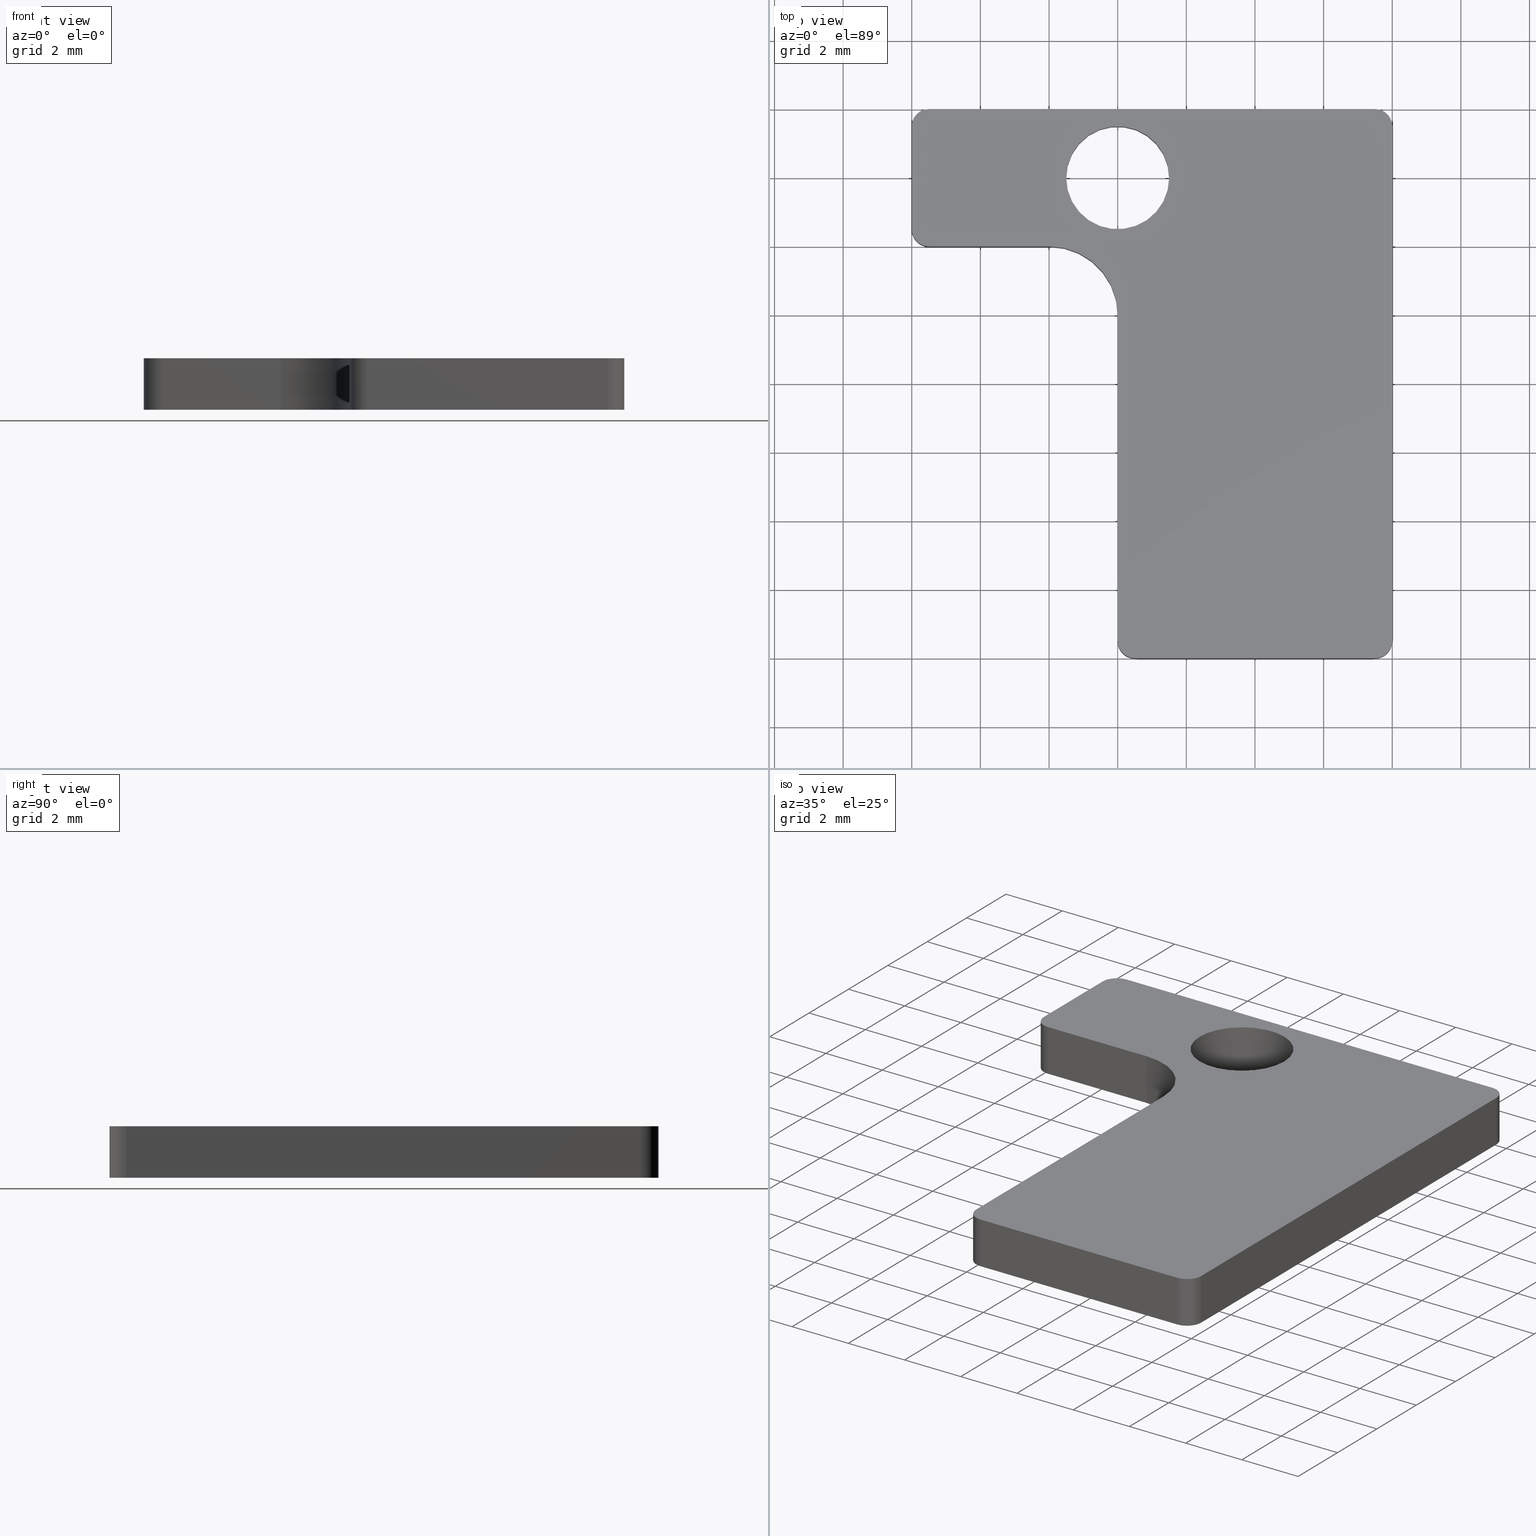
[diagram: canonical four-view strip — front | top / right | iso, engineering-drawing reading convention]
A machine part, canonical four-view strip (front | top / right | iso — engineering-drawing reading convention). The complete STEP part file that produces these views, byte-faithful:
ISO-10303-21;
HEADER;
FILE_DESCRIPTION(('FreeCAD Model'),'2;1');
FILE_NAME(
'/home/aleph/yellowfin/production_parts/machined_parts/some_struder_
retention_plate.step','2017-07-21T13:21:46',('Author'),(''),
  'Open CASCADE STEP processor 6.9','FreeCAD','Unknown');
FILE_SCHEMA(('AUTOMOTIVE_DESIGN_CC2 { 1 2 10303 214 -1 1 5 4 }'));
ENDSEC;
DATA;
#1 = APPLICATION_PROTOCOL_DEFINITION('committee draft',
  'automotive_design',1997,#2);
#2 = APPLICATION_CONTEXT(
  'core data for automotive mechanical design processes');
#3 = SHAPE_DEFINITION_REPRESENTATION(#4,#10);
#4 = PRODUCT_DEFINITION_SHAPE('','',#5);
#5 = PRODUCT_DEFINITION('design','',#6,#9);
#6 = PRODUCT_DEFINITION_FORMATION('','',#7);
#7 = PRODUCT('Fillet001','Fillet001','',(#8));
#8 = MECHANICAL_CONTEXT('',#2,'mechanical');
#9 = PRODUCT_DEFINITION_CONTEXT('part definition',#2,'design');
#10 = ADVANCED_BREP_SHAPE_REPRESENTATION('',(#11,#15),#1097);
#11 = AXIS2_PLACEMENT_3D('',#12,#13,#14);
#12 = CARTESIAN_POINT('',(0.,0.,0.));
#13 = DIRECTION('',(0.,0.,1.));
#14 = DIRECTION('',(1.,0.,-0.));
#15 = MANIFOLD_SOLID_BREP('',#16);
#16 = CLOSED_SHELL('',(#17,#137,#490,#544,#598,#847,#874,#901,#928,#955,
    #982,#1009,#1036,#1063,#1070));
#17 = ADVANCED_FACE('',(#18),#32,.T.);
#18 = FACE_BOUND('',#19,.T.);
#19 = EDGE_LOOP('',(#20,#55,#83,#111));
#20 = ORIENTED_EDGE('',*,*,#21,.F.);
#21 = EDGE_CURVE('',#22,#24,#26,.T.);
#22 = VERTEX_POINT('',#23);
#23 = CARTESIAN_POINT('',(-2.,12.,0.));
#24 = VERTEX_POINT('',#25);
#25 = CARTESIAN_POINT('',(-5.5,12.,0.));
#26 = SURFACE_CURVE('',#27,(#31,#43),.PCURVE_S1.);
#27 = LINE('',#28,#29);
#28 = CARTESIAN_POINT('',(0.,12.,0.));
#29 = VECTOR('',#30,1.);
#30 = DIRECTION('',(-1.,0.,0.));
#31 = PCURVE('',#32,#37);
#32 = PLANE('',#33);
#33 = AXIS2_PLACEMENT_3D('',#34,#35,#36);
#34 = CARTESIAN_POINT('',(0.,12.,0.));
#35 = DIRECTION('',(0.,-1.,0.));
#36 = DIRECTION('',(-1.,0.,0.));
#37 = DEFINITIONAL_REPRESENTATION('',(#38),#42);
#38 = LINE('',#39,#40);
#39 = CARTESIAN_POINT('',(0.,-0.));
#40 = VECTOR('',#41,1.);
#41 = DIRECTION('',(1.,0.));
#42 = ( GEOMETRIC_REPRESENTATION_CONTEXT(2) 
PARAMETRIC_REPRESENTATION_CONTEXT() REPRESENTATION_CONTEXT('2D SPACE',''
  ) );
#43 = PCURVE('',#44,#49);
#44 = PLANE('',#45);
#45 = AXIS2_PLACEMENT_3D('',#46,#47,#48);
#46 = CARTESIAN_POINT('',(2.2,9.2,0.));
#47 = DIRECTION('',(0.,0.,1.));
#48 = DIRECTION('',(1.,0.,0.));
#49 = DEFINITIONAL_REPRESENTATION('',(#50),#54);
#50 = LINE('',#51,#52);
#51 = CARTESIAN_POINT('',(-2.2,2.8));
#52 = VECTOR('',#53,1.);
#53 = DIRECTION('',(-1.,0.));
#54 = ( GEOMETRIC_REPRESENTATION_CONTEXT(2) 
PARAMETRIC_REPRESENTATION_CONTEXT() REPRESENTATION_CONTEXT('2D SPACE',''
  ) );
#55 = ORIENTED_EDGE('',*,*,#56,.T.);
#56 = EDGE_CURVE('',#22,#57,#59,.T.);
#57 = VERTEX_POINT('',#58);
#58 = CARTESIAN_POINT('',(-2.,12.,1.5));
#59 = SURFACE_CURVE('',#60,(#64,#71),.PCURVE_S1.);
#60 = LINE('',#61,#62);
#61 = CARTESIAN_POINT('',(-2.,12.,0.));
#62 = VECTOR('',#63,1.);
#63 = DIRECTION('',(0.,0.,1.));
#64 = PCURVE('',#32,#65);
#65 = DEFINITIONAL_REPRESENTATION('',(#66),#70);
#66 = LINE('',#67,#68);
#67 = CARTESIAN_POINT('',(2.,0.));
#68 = VECTOR('',#69,1.);
#69 = DIRECTION('',(0.,-1.));
#70 = ( GEOMETRIC_REPRESENTATION_CONTEXT(2) 
PARAMETRIC_REPRESENTATION_CONTEXT() REPRESENTATION_CONTEXT('2D SPACE',''
  ) );
#71 = PCURVE('',#72,#77);
#72 = CYLINDRICAL_SURFACE('',#73,2.);
#73 = AXIS2_PLACEMENT_3D('',#74,#75,#76);
#74 = CARTESIAN_POINT('',(-2.,10.,0.));
#75 = DIRECTION('',(0.,0.,1.));
#76 = DIRECTION('',(0.,1.,0.));
#77 = DEFINITIONAL_REPRESENTATION('',(#78),#82);
#78 = LINE('',#79,#80);
#79 = CARTESIAN_POINT('',(-0.,0.));
#80 = VECTOR('',#81,1.);
#81 = DIRECTION('',(-0.,1.));
#82 = ( GEOMETRIC_REPRESENTATION_CONTEXT(2) 
PARAMETRIC_REPRESENTATION_CONTEXT() REPRESENTATION_CONTEXT('2D SPACE',''
  ) );
#83 = ORIENTED_EDGE('',*,*,#84,.T.);
#84 = EDGE_CURVE('',#57,#85,#87,.T.);
#85 = VERTEX_POINT('',#86);
#86 = CARTESIAN_POINT('',(-5.5,12.,1.5));
#87 = SURFACE_CURVE('',#88,(#92,#99),.PCURVE_S1.);
#88 = LINE('',#89,#90);
#89 = CARTESIAN_POINT('',(0.,12.,1.5));
#90 = VECTOR('',#91,1.);
#91 = DIRECTION('',(-1.,0.,0.));
#92 = PCURVE('',#32,#93);
#93 = DEFINITIONAL_REPRESENTATION('',(#94),#98);
#94 = LINE('',#95,#96);
#95 = CARTESIAN_POINT('',(0.,-1.5));
#96 = VECTOR('',#97,1.);
#97 = DIRECTION('',(1.,0.));
#98 = ( GEOMETRIC_REPRESENTATION_CONTEXT(2) 
PARAMETRIC_REPRESENTATION_CONTEXT() REPRESENTATION_CONTEXT('2D SPACE',''
  ) );
#99 = PCURVE('',#100,#105);
#100 = PLANE('',#101);
#101 = AXIS2_PLACEMENT_3D('',#102,#103,#104);
#102 = CARTESIAN_POINT('',(2.2,9.2,1.5));
#103 = DIRECTION('',(0.,0.,1.));
#104 = DIRECTION('',(1.,0.,0.));
#105 = DEFINITIONAL_REPRESENTATION('',(#106),#110);
#106 = LINE('',#107,#108);
#107 = CARTESIAN_POINT('',(-2.2,2.8));
#108 = VECTOR('',#109,1.);
#109 = DIRECTION('',(-1.,0.));
#110 = ( GEOMETRIC_REPRESENTATION_CONTEXT(2) 
PARAMETRIC_REPRESENTATION_CONTEXT() REPRESENTATION_CONTEXT('2D SPACE',''
  ) );
#111 = ORIENTED_EDGE('',*,*,#112,.F.);
#112 = EDGE_CURVE('',#24,#85,#113,.T.);
#113 = SURFACE_CURVE('',#114,(#118,#125),.PCURVE_S1.);
#114 = LINE('',#115,#116);
#115 = CARTESIAN_POINT('',(-5.5,12.,0.));
#116 = VECTOR('',#117,1.);
#117 = DIRECTION('',(0.,0.,1.));
#118 = PCURVE('',#32,#119);
#119 = DEFINITIONAL_REPRESENTATION('',(#120),#124);
#120 = LINE('',#121,#122);
#121 = CARTESIAN_POINT('',(5.5,0.));
#122 = VECTOR('',#123,1.);
#123 = DIRECTION('',(0.,-1.));
#124 = ( GEOMETRIC_REPRESENTATION_CONTEXT(2) 
PARAMETRIC_REPRESENTATION_CONTEXT() REPRESENTATION_CONTEXT('2D SPACE',''
  ) );
#125 = PCURVE('',#126,#131);
#126 = CYLINDRICAL_SURFACE('',#127,0.5);
#127 = AXIS2_PLACEMENT_3D('',#128,#129,#130);
#128 = CARTESIAN_POINT('',(-5.5,12.5,0.));
#129 = DIRECTION('',(0.,0.,1.));
#130 = DIRECTION('',(0.,-1.,0.));
#131 = DEFINITIONAL_REPRESENTATION('',(#132),#136);
#132 = LINE('',#133,#134);
#133 = CARTESIAN_POINT('',(-0.,0.));
#134 = VECTOR('',#135,1.);
#135 = DIRECTION('',(-0.,1.));
#136 = ( GEOMETRIC_REPRESENTATION_CONTEXT(2) 
PARAMETRIC_REPRESENTATION_CONTEXT() REPRESENTATION_CONTEXT('2D SPACE',''
  ) );
#137 = ADVANCED_FACE('',(#138,#459),#44,.F.);
#138 = FACE_BOUND('',#139,.F.);
#139 = EDGE_LOOP('',(#140,#141,#169,#197,#226,#254,#283,#311,#344,#372,
    #405,#433));
#140 = ORIENTED_EDGE('',*,*,#21,.F.);
#141 = ORIENTED_EDGE('',*,*,#142,.T.);
#142 = EDGE_CURVE('',#22,#143,#145,.T.);
#143 = VERTEX_POINT('',#144);
#144 = CARTESIAN_POINT('',(4.440892098501E-16,10.,0.));
#145 = SURFACE_CURVE('',#146,(#151,#162),.PCURVE_S1.);
#146 = CIRCLE('',#147,2.);
#147 = AXIS2_PLACEMENT_3D('',#148,#149,#150);
#148 = CARTESIAN_POINT('',(-2.,10.,0.));
#149 = DIRECTION('',(-0.,-0.,-1.));
#150 = DIRECTION('',(0.,-1.,0.));
#151 = PCURVE('',#44,#152);
#152 = DEFINITIONAL_REPRESENTATION('',(#153),#161);
#153 = ( BOUNDED_CURVE() B_SPLINE_CURVE(2,(#154,#155,#156,#157,#158,#159
,#160),.UNSPECIFIED.,.F.,.F.) B_SPLINE_CURVE_WITH_KNOTS((1,2,2,2,2,1),(
    -2.094395102393,0.,2.094395102393,4.188790204786,6.28318530718,
8.377580409573),.UNSPECIFIED.) CURVE() GEOMETRIC_REPRESENTATION_ITEM() 
RATIONAL_B_SPLINE_CURVE((1.,0.5,1.,0.5,1.,0.5,1.)) REPRESENTATION_ITEM(
  '') );
#154 = CARTESIAN_POINT('',(-4.2,-1.2));
#155 = CARTESIAN_POINT('',(-7.664101615138,-1.2));
#156 = CARTESIAN_POINT('',(-5.932050807569,1.8));
#157 = CARTESIAN_POINT('',(-4.2,4.8));
#158 = CARTESIAN_POINT('',(-2.467949192431,1.8));
#159 = CARTESIAN_POINT('',(-0.735898384862,-1.2));
#160 = CARTESIAN_POINT('',(-4.2,-1.2));
#161 = ( GEOMETRIC_REPRESENTATION_CONTEXT(2) 
PARAMETRIC_REPRESENTATION_CONTEXT() REPRESENTATION_CONTEXT('2D SPACE',''
  ) );
#162 = PCURVE('',#72,#163);
#163 = DEFINITIONAL_REPRESENTATION('',(#164),#168);
#164 = LINE('',#165,#166);
#165 = CARTESIAN_POINT('',(3.14159265359,-0.));
#166 = VECTOR('',#167,1.);
#167 = DIRECTION('',(-1.,0.));
#168 = ( GEOMETRIC_REPRESENTATION_CONTEXT(2) 
PARAMETRIC_REPRESENTATION_CONTEXT() REPRESENTATION_CONTEXT('2D SPACE',''
  ) );
#169 = ORIENTED_EDGE('',*,*,#170,.F.);
#170 = EDGE_CURVE('',#171,#143,#173,.T.);
#171 = VERTEX_POINT('',#172);
#172 = CARTESIAN_POINT('',(-1.110223024625E-16,0.5,0.));
#173 = SURFACE_CURVE('',#174,(#178,#185),.PCURVE_S1.);
#174 = LINE('',#175,#176);
#175 = CARTESIAN_POINT('',(0.,0.,0.));
#176 = VECTOR('',#177,1.);
#177 = DIRECTION('',(0.,1.,0.));
#178 = PCURVE('',#44,#179);
#179 = DEFINITIONAL_REPRESENTATION('',(#180),#184);
#180 = LINE('',#181,#182);
#181 = CARTESIAN_POINT('',(-2.2,-9.2));
#182 = VECTOR('',#183,1.);
#183 = DIRECTION('',(0.,1.));
#184 = ( GEOMETRIC_REPRESENTATION_CONTEXT(2) 
PARAMETRIC_REPRESENTATION_CONTEXT() REPRESENTATION_CONTEXT('2D SPACE',''
  ) );
#185 = PCURVE('',#186,#191);
#186 = PLANE('',#187);
#187 = AXIS2_PLACEMENT_3D('',#188,#189,#190);
#188 = CARTESIAN_POINT('',(0.,0.,0.));
#189 = DIRECTION('',(-1.,0.,0.));
#190 = DIRECTION('',(0.,1.,0.));
#191 = DEFINITIONAL_REPRESENTATION('',(#192),#196);
#192 = LINE('',#193,#194);
#193 = CARTESIAN_POINT('',(0.,0.));
#194 = VECTOR('',#195,1.);
#195 = DIRECTION('',(1.,0.));
#196 = ( GEOMETRIC_REPRESENTATION_CONTEXT(2) 
PARAMETRIC_REPRESENTATION_CONTEXT() REPRESENTATION_CONTEXT('2D SPACE',''
  ) );
#197 = ORIENTED_EDGE('',*,*,#198,.T.);
#198 = EDGE_CURVE('',#171,#199,#201,.T.);
#199 = VERTEX_POINT('',#200);
#200 = CARTESIAN_POINT('',(0.5,-1.110223024625E-16,0.));
#201 = SURFACE_CURVE('',#202,(#207,#214),.PCURVE_S1.);
#202 = CIRCLE('',#203,0.5);
#203 = AXIS2_PLACEMENT_3D('',#204,#205,#206);
#204 = CARTESIAN_POINT('',(0.5,0.5,0.));
#205 = DIRECTION('',(0.,0.,1.));
#206 = DIRECTION('',(0.,-1.,0.));
#207 = PCURVE('',#44,#208);
#208 = DEFINITIONAL_REPRESENTATION('',(#209),#213);
#209 = CIRCLE('',#210,0.5);
#210 = AXIS2_PLACEMENT_2D('',#211,#212);
#211 = CARTESIAN_POINT('',(-1.7,-8.7));
#212 = DIRECTION('',(0.,-1.));
#213 = ( GEOMETRIC_REPRESENTATION_CONTEXT(2) 
PARAMETRIC_REPRESENTATION_CONTEXT() REPRESENTATION_CONTEXT('2D SPACE',''
  ) );
#214 = PCURVE('',#215,#220);
#215 = CYLINDRICAL_SURFACE('',#216,0.5);
#216 = AXIS2_PLACEMENT_3D('',#217,#218,#219);
#217 = CARTESIAN_POINT('',(0.5,0.5,0.));
#218 = DIRECTION('',(0.,0.,1.));
#219 = DIRECTION('',(-1.,0.,0.));
#220 = DEFINITIONAL_REPRESENTATION('',(#221),#225);
#221 = LINE('',#222,#223);
#222 = CARTESIAN_POINT('',(-4.712388980385,0.));
#223 = VECTOR('',#224,1.);
#224 = DIRECTION('',(1.,0.));
#225 = ( GEOMETRIC_REPRESENTATION_CONTEXT(2) 
PARAMETRIC_REPRESENTATION_CONTEXT() REPRESENTATION_CONTEXT('2D SPACE',''
  ) );
#226 = ORIENTED_EDGE('',*,*,#227,.T.);
#227 = EDGE_CURVE('',#199,#228,#230,.T.);
#228 = VERTEX_POINT('',#229);
#229 = CARTESIAN_POINT('',(7.5,-1.110223024625E-16,0.));
#230 = SURFACE_CURVE('',#231,(#235,#242),.PCURVE_S1.);
#231 = LINE('',#232,#233);
#232 = CARTESIAN_POINT('',(0.,0.,0.));
#233 = VECTOR('',#234,1.);
#234 = DIRECTION('',(1.,0.,0.));
#235 = PCURVE('',#44,#236);
#236 = DEFINITIONAL_REPRESENTATION('',(#237),#241);
#237 = LINE('',#238,#239);
#238 = CARTESIAN_POINT('',(-2.2,-9.2));
#239 = VECTOR('',#240,1.);
#240 = DIRECTION('',(1.,0.));
#241 = ( GEOMETRIC_REPRESENTATION_CONTEXT(2) 
PARAMETRIC_REPRESENTATION_CONTEXT() REPRESENTATION_CONTEXT('2D SPACE',''
  ) );
#242 = PCURVE('',#243,#248);
#243 = PLANE('',#244);
#244 = AXIS2_PLACEMENT_3D('',#245,#246,#247);
#245 = CARTESIAN_POINT('',(0.,0.,0.));
#246 = DIRECTION('',(0.,1.,0.));
#247 = DIRECTION('',(1.,0.,0.));
#248 = DEFINITIONAL_REPRESENTATION('',(#249),#253);
#249 = LINE('',#250,#251);
#250 = CARTESIAN_POINT('',(0.,0.));
#251 = VECTOR('',#252,1.);
#252 = DIRECTION('',(1.,0.));
#253 = ( GEOMETRIC_REPRESENTATION_CONTEXT(2) 
PARAMETRIC_REPRESENTATION_CONTEXT() REPRESENTATION_CONTEXT('2D SPACE',''
  ) );
#254 = ORIENTED_EDGE('',*,*,#255,.T.);
#255 = EDGE_CURVE('',#228,#256,#258,.T.);
#256 = VERTEX_POINT('',#257);
#257 = CARTESIAN_POINT('',(8.,0.5,0.));
#258 = SURFACE_CURVE('',#259,(#264,#271),.PCURVE_S1.);
#259 = CIRCLE('',#260,0.5);
#260 = AXIS2_PLACEMENT_3D('',#261,#262,#263);
#261 = CARTESIAN_POINT('',(7.5,0.5,0.));
#262 = DIRECTION('',(0.,0.,1.));
#263 = DIRECTION('',(0.,-1.,0.));
#264 = PCURVE('',#44,#265);
#265 = DEFINITIONAL_REPRESENTATION('',(#266),#270);
#266 = CIRCLE('',#267,0.5);
#267 = AXIS2_PLACEMENT_2D('',#268,#269);
#268 = CARTESIAN_POINT('',(5.3,-8.7));
#269 = DIRECTION('',(0.,-1.));
#270 = ( GEOMETRIC_REPRESENTATION_CONTEXT(2) 
PARAMETRIC_REPRESENTATION_CONTEXT() REPRESENTATION_CONTEXT('2D SPACE',''
  ) );
#271 = PCURVE('',#272,#277);
#272 = CYLINDRICAL_SURFACE('',#273,0.5);
#273 = AXIS2_PLACEMENT_3D('',#274,#275,#276);
#274 = CARTESIAN_POINT('',(7.5,0.5,0.));
#275 = DIRECTION('',(0.,0.,1.));
#276 = DIRECTION('',(0.,-1.,0.));
#277 = DEFINITIONAL_REPRESENTATION('',(#278),#282);
#278 = LINE('',#279,#280);
#279 = CARTESIAN_POINT('',(0.,0.));
#280 = VECTOR('',#281,1.);
#281 = DIRECTION('',(1.,0.));
#282 = ( GEOMETRIC_REPRESENTATION_CONTEXT(2) 
PARAMETRIC_REPRESENTATION_CONTEXT() REPRESENTATION_CONTEXT('2D SPACE',''
  ) );
#283 = ORIENTED_EDGE('',*,*,#284,.T.);
#284 = EDGE_CURVE('',#256,#285,#287,.T.);
#285 = VERTEX_POINT('',#286);
#286 = CARTESIAN_POINT('',(8.,15.5,0.));
#287 = SURFACE_CURVE('',#288,(#292,#299),.PCURVE_S1.);
#288 = LINE('',#289,#290);
#289 = CARTESIAN_POINT('',(8.,0.,0.));
#290 = VECTOR('',#291,1.);
#291 = DIRECTION('',(0.,1.,0.));
#292 = PCURVE('',#44,#293);
#293 = DEFINITIONAL_REPRESENTATION('',(#294),#298);
#294 = LINE('',#295,#296);
#295 = CARTESIAN_POINT('',(5.8,-9.2));
#296 = VECTOR('',#297,1.);
#297 = DIRECTION('',(0.,1.));
#298 = ( GEOMETRIC_REPRESENTATION_CONTEXT(2) 
PARAMETRIC_REPRESENTATION_CONTEXT() REPRESENTATION_CONTEXT('2D SPACE',''
  ) );
#299 = PCURVE('',#300,#305);
#300 = PLANE('',#301);
#301 = AXIS2_PLACEMENT_3D('',#302,#303,#304);
#302 = CARTESIAN_POINT('',(8.,0.,0.));
#303 = DIRECTION('',(-1.,0.,0.));
#304 = DIRECTION('',(0.,1.,0.));
#305 = DEFINITIONAL_REPRESENTATION('',(#306),#310);
#306 = LINE('',#307,#308);
#307 = CARTESIAN_POINT('',(0.,0.));
#308 = VECTOR('',#309,1.);
#309 = DIRECTION('',(1.,0.));
#310 = ( GEOMETRIC_REPRESENTATION_CONTEXT(2) 
PARAMETRIC_REPRESENTATION_CONTEXT() REPRESENTATION_CONTEXT('2D SPACE',''
  ) );
#311 = ORIENTED_EDGE('',*,*,#312,.F.);
#312 = EDGE_CURVE('',#313,#285,#315,.T.);
#313 = VERTEX_POINT('',#314);
#314 = CARTESIAN_POINT('',(7.5,16.,0.));
#315 = SURFACE_CURVE('',#316,(#321,#332),.PCURVE_S1.);
#316 = CIRCLE('',#317,0.5);
#317 = AXIS2_PLACEMENT_3D('',#318,#319,#320);
#318 = CARTESIAN_POINT('',(7.5,15.5,0.));
#319 = DIRECTION('',(-0.,-0.,-1.));
#320 = DIRECTION('',(0.,-1.,0.));
#321 = PCURVE('',#44,#322);
#322 = DEFINITIONAL_REPRESENTATION('',(#323),#331);
#323 = ( BOUNDED_CURVE() B_SPLINE_CURVE(2,(#324,#325,#326,#327,#328,#329
,#330),.UNSPECIFIED.,.T.,.F.) B_SPLINE_CURVE_WITH_KNOTS((1,2,2,2,2,1),(
    -2.094395102393,0.,2.094395102393,4.188790204786,6.28318530718,
8.377580409573),.UNSPECIFIED.) CURVE() GEOMETRIC_REPRESENTATION_ITEM() 
RATIONAL_B_SPLINE_CURVE((1.,0.5,1.,0.5,1.,0.5,1.)) REPRESENTATION_ITEM(
  '') );
#324 = CARTESIAN_POINT('',(5.3,5.8));
#325 = CARTESIAN_POINT('',(4.433974596216,5.8));
#326 = CARTESIAN_POINT('',(4.866987298108,6.55));
#327 = CARTESIAN_POINT('',(5.3,7.3));
#328 = CARTESIAN_POINT('',(5.733012701892,6.55));
#329 = CARTESIAN_POINT('',(6.166025403784,5.8));
#330 = CARTESIAN_POINT('',(5.3,5.8));
#331 = ( GEOMETRIC_REPRESENTATION_CONTEXT(2) 
PARAMETRIC_REPRESENTATION_CONTEXT() REPRESENTATION_CONTEXT('2D SPACE',''
  ) );
#332 = PCURVE('',#333,#338);
#333 = CYLINDRICAL_SURFACE('',#334,0.5);
#334 = AXIS2_PLACEMENT_3D('',#335,#336,#337);
#335 = CARTESIAN_POINT('',(7.5,15.5,0.));
#336 = DIRECTION('',(0.,0.,1.));
#337 = DIRECTION('',(-0.,1.,0.));
#338 = DEFINITIONAL_REPRESENTATION('',(#339),#343);
#339 = LINE('',#340,#341);
#340 = CARTESIAN_POINT('',(3.14159265359,-0.));
#341 = VECTOR('',#342,1.);
#342 = DIRECTION('',(-1.,0.));
#343 = ( GEOMETRIC_REPRESENTATION_CONTEXT(2) 
PARAMETRIC_REPRESENTATION_CONTEXT() REPRESENTATION_CONTEXT('2D SPACE',''
  ) );
#344 = ORIENTED_EDGE('',*,*,#345,.T.);
#345 = EDGE_CURVE('',#313,#346,#348,.T.);
#346 = VERTEX_POINT('',#347);
#347 = CARTESIAN_POINT('',(-5.5,16.,0.));
#348 = SURFACE_CURVE('',#349,(#353,#360),.PCURVE_S1.);
#349 = LINE('',#350,#351);
#350 = CARTESIAN_POINT('',(8.,16.,0.));
#351 = VECTOR('',#352,1.);
#352 = DIRECTION('',(-1.,0.,0.));
#353 = PCURVE('',#44,#354);
#354 = DEFINITIONAL_REPRESENTATION('',(#355),#359);
#355 = LINE('',#356,#357);
#356 = CARTESIAN_POINT('',(5.8,6.8));
#357 = VECTOR('',#358,1.);
#358 = DIRECTION('',(-1.,0.));
#359 = ( GEOMETRIC_REPRESENTATION_CONTEXT(2) 
PARAMETRIC_REPRESENTATION_CONTEXT() REPRESENTATION_CONTEXT('2D SPACE',''
  ) );
#360 = PCURVE('',#361,#366);
#361 = PLANE('',#362);
#362 = AXIS2_PLACEMENT_3D('',#363,#364,#365);
#363 = CARTESIAN_POINT('',(8.,16.,0.));
#364 = DIRECTION('',(0.,-1.,0.));
#365 = DIRECTION('',(-1.,0.,0.));
#366 = DEFINITIONAL_REPRESENTATION('',(#367),#371);
#367 = LINE('',#368,#369);
#368 = CARTESIAN_POINT('',(0.,-0.));
#369 = VECTOR('',#370,1.);
#370 = DIRECTION('',(1.,0.));
#371 = ( GEOMETRIC_REPRESENTATION_CONTEXT(2) 
PARAMETRIC_REPRESENTATION_CONTEXT() REPRESENTATION_CONTEXT('2D SPACE',''
  ) );
#372 = ORIENTED_EDGE('',*,*,#373,.F.);
#373 = EDGE_CURVE('',#374,#346,#376,.T.);
#374 = VERTEX_POINT('',#375);
#375 = CARTESIAN_POINT('',(-6.,15.5,0.));
#376 = SURFACE_CURVE('',#377,(#382,#393),.PCURVE_S1.);
#377 = CIRCLE('',#378,0.5);
#378 = AXIS2_PLACEMENT_3D('',#379,#380,#381);
#379 = CARTESIAN_POINT('',(-5.5,15.5,0.));
#380 = DIRECTION('',(-0.,-0.,-1.));
#381 = DIRECTION('',(0.,-1.,0.));
#382 = PCURVE('',#44,#383);
#383 = DEFINITIONAL_REPRESENTATION('',(#384),#392);
#384 = ( BOUNDED_CURVE() B_SPLINE_CURVE(2,(#385,#386,#387,#388,#389,#390
,#391),.UNSPECIFIED.,.T.,.F.) B_SPLINE_CURVE_WITH_KNOTS((1,2,2,2,2,1),(
    -2.094395102393,0.,2.094395102393,4.188790204786,6.28318530718,
8.377580409573),.UNSPECIFIED.) CURVE() GEOMETRIC_REPRESENTATION_ITEM() 
RATIONAL_B_SPLINE_CURVE((1.,0.5,1.,0.5,1.,0.5,1.)) REPRESENTATION_ITEM(
  '') );
#385 = CARTESIAN_POINT('',(-7.7,5.8));
#386 = CARTESIAN_POINT('',(-8.566025403784,5.8));
#387 = CARTESIAN_POINT('',(-8.133012701892,6.55));
#388 = CARTESIAN_POINT('',(-7.7,7.3));
#389 = CARTESIAN_POINT('',(-7.266987298108,6.55));
#390 = CARTESIAN_POINT('',(-6.833974596216,5.8));
#391 = CARTESIAN_POINT('',(-7.7,5.8));
#392 = ( GEOMETRIC_REPRESENTATION_CONTEXT(2) 
PARAMETRIC_REPRESENTATION_CONTEXT() REPRESENTATION_CONTEXT('2D SPACE',''
  ) );
#393 = PCURVE('',#394,#399);
#394 = CYLINDRICAL_SURFACE('',#395,0.5);
#395 = AXIS2_PLACEMENT_3D('',#396,#397,#398);
#396 = CARTESIAN_POINT('',(-5.5,15.5,0.));
#397 = DIRECTION('',(0.,0.,1.));
#398 = DIRECTION('',(-1.,0.,0.));
#399 = DEFINITIONAL_REPRESENTATION('',(#400),#404);
#400 = LINE('',#401,#402);
#401 = CARTESIAN_POINT('',(1.570796326795,-0.));
#402 = VECTOR('',#403,1.);
#403 = DIRECTION('',(-1.,0.));
#404 = ( GEOMETRIC_REPRESENTATION_CONTEXT(2) 
PARAMETRIC_REPRESENTATION_CONTEXT() REPRESENTATION_CONTEXT('2D SPACE',''
  ) );
#405 = ORIENTED_EDGE('',*,*,#406,.T.);
#406 = EDGE_CURVE('',#374,#407,#409,.T.);
#407 = VERTEX_POINT('',#408);
#408 = CARTESIAN_POINT('',(-6.,12.5,0.));
#409 = SURFACE_CURVE('',#410,(#414,#421),.PCURVE_S1.);
#410 = LINE('',#411,#412);
#411 = CARTESIAN_POINT('',(-6.,16.,0.));
#412 = VECTOR('',#413,1.);
#413 = DIRECTION('',(0.,-1.,0.));
#414 = PCURVE('',#44,#415);
#415 = DEFINITIONAL_REPRESENTATION('',(#416),#420);
#416 = LINE('',#417,#418);
#417 = CARTESIAN_POINT('',(-8.2,6.8));
#418 = VECTOR('',#419,1.);
#419 = DIRECTION('',(0.,-1.));
#420 = ( GEOMETRIC_REPRESENTATION_CONTEXT(2) 
PARAMETRIC_REPRESENTATION_CONTEXT() REPRESENTATION_CONTEXT('2D SPACE',''
  ) );
#421 = PCURVE('',#422,#427);
#422 = PLANE('',#423);
#423 = AXIS2_PLACEMENT_3D('',#424,#425,#426);
#424 = CARTESIAN_POINT('',(-6.,16.,0.));
#425 = DIRECTION('',(1.,0.,0.));
#426 = DIRECTION('',(0.,-1.,0.));
#427 = DEFINITIONAL_REPRESENTATION('',(#428),#432);
#428 = LINE('',#429,#430);
#429 = CARTESIAN_POINT('',(0.,0.));
#430 = VECTOR('',#431,1.);
#431 = DIRECTION('',(1.,0.));
#432 = ( GEOMETRIC_REPRESENTATION_CONTEXT(2) 
PARAMETRIC_REPRESENTATION_CONTEXT() REPRESENTATION_CONTEXT('2D SPACE',''
  ) );
#433 = ORIENTED_EDGE('',*,*,#434,.F.);
#434 = EDGE_CURVE('',#24,#407,#435,.T.);
#435 = SURFACE_CURVE('',#436,(#441,#452),.PCURVE_S1.);
#436 = CIRCLE('',#437,0.5);
#437 = AXIS2_PLACEMENT_3D('',#438,#439,#440);
#438 = CARTESIAN_POINT('',(-5.5,12.5,0.));
#439 = DIRECTION('',(-0.,-0.,-1.));
#440 = DIRECTION('',(0.,-1.,0.));
#441 = PCURVE('',#44,#442);
#442 = DEFINITIONAL_REPRESENTATION('',(#443),#451);
#443 = ( BOUNDED_CURVE() B_SPLINE_CURVE(2,(#444,#445,#446,#447,#448,#449
,#450),.UNSPECIFIED.,.T.,.F.) B_SPLINE_CURVE_WITH_KNOTS((1,2,2,2,2,1),(
    -2.094395102393,0.,2.094395102393,4.188790204786,6.28318530718,
8.377580409573),.UNSPECIFIED.) CURVE() GEOMETRIC_REPRESENTATION_ITEM() 
RATIONAL_B_SPLINE_CURVE((1.,0.5,1.,0.5,1.,0.5,1.)) REPRESENTATION_ITEM(
  '') );
#444 = CARTESIAN_POINT('',(-7.7,2.8));
#445 = CARTESIAN_POINT('',(-8.566025403784,2.8));
#446 = CARTESIAN_POINT('',(-8.133012701892,3.55));
#447 = CARTESIAN_POINT('',(-7.7,4.3));
#448 = CARTESIAN_POINT('',(-7.266987298108,3.55));
#449 = CARTESIAN_POINT('',(-6.833974596216,2.8));
#450 = CARTESIAN_POINT('',(-7.7,2.8));
#451 = ( GEOMETRIC_REPRESENTATION_CONTEXT(2) 
PARAMETRIC_REPRESENTATION_CONTEXT() REPRESENTATION_CONTEXT('2D SPACE',''
  ) );
#452 = PCURVE('',#126,#453);
#453 = DEFINITIONAL_REPRESENTATION('',(#454),#458);
#454 = LINE('',#455,#456);
#455 = CARTESIAN_POINT('',(-0.,0.));
#456 = VECTOR('',#457,1.);
#457 = DIRECTION('',(-1.,0.));
#458 = ( GEOMETRIC_REPRESENTATION_CONTEXT(2) 
PARAMETRIC_REPRESENTATION_CONTEXT() REPRESENTATION_CONTEXT('2D SPACE',''
  ) );
#459 = FACE_BOUND('',#460,.F.);
#460 = EDGE_LOOP('',(#461));
#461 = ORIENTED_EDGE('',*,*,#462,.F.);
#462 = EDGE_CURVE('',#463,#463,#465,.T.);
#463 = VERTEX_POINT('',#464);
#464 = CARTESIAN_POINT('',(1.5,14.,0.));
#465 = SURFACE_CURVE('',#466,(#471,#478),.PCURVE_S1.);
#466 = CIRCLE('',#467,1.5);
#467 = AXIS2_PLACEMENT_3D('',#468,#469,#470);
#468 = CARTESIAN_POINT('',(0.,14.,0.));
#469 = DIRECTION('',(0.,0.,1.));
#470 = DIRECTION('',(1.,0.,0.));
#471 = PCURVE('',#44,#472);
#472 = DEFINITIONAL_REPRESENTATION('',(#473),#477);
#473 = CIRCLE('',#474,1.5);
#474 = AXIS2_PLACEMENT_2D('',#475,#476);
#475 = CARTESIAN_POINT('',(-2.2,4.8));
#476 = DIRECTION('',(1.,0.));
#477 = ( GEOMETRIC_REPRESENTATION_CONTEXT(2) 
PARAMETRIC_REPRESENTATION_CONTEXT() REPRESENTATION_CONTEXT('2D SPACE',''
  ) );
#478 = PCURVE('',#479,#484);
#479 = CYLINDRICAL_SURFACE('',#480,1.5);
#480 = AXIS2_PLACEMENT_3D('',#481,#482,#483);
#481 = CARTESIAN_POINT('',(0.,14.,0.));
#482 = DIRECTION('',(-0.,-0.,-1.));
#483 = DIRECTION('',(1.,0.,0.));
#484 = DEFINITIONAL_REPRESENTATION('',(#485),#489);
#485 = LINE('',#486,#487);
#486 = CARTESIAN_POINT('',(-0.,0.));
#487 = VECTOR('',#488,1.);
#488 = DIRECTION('',(-1.,0.));
#489 = ( GEOMETRIC_REPRESENTATION_CONTEXT(2) 
PARAMETRIC_REPRESENTATION_CONTEXT() REPRESENTATION_CONTEXT('2D SPACE',''
  ) );
#490 = ADVANCED_FACE('',(#491),#126,.T.);
#491 = FACE_BOUND('',#492,.F.);
#492 = EDGE_LOOP('',(#493,#494,#517,#543));
#493 = ORIENTED_EDGE('',*,*,#434,.T.);
#494 = ORIENTED_EDGE('',*,*,#495,.T.);
#495 = EDGE_CURVE('',#407,#496,#498,.T.);
#496 = VERTEX_POINT('',#497);
#497 = CARTESIAN_POINT('',(-6.,12.5,1.5));
#498 = SURFACE_CURVE('',#499,(#503,#510),.PCURVE_S1.);
#499 = LINE('',#500,#501);
#500 = CARTESIAN_POINT('',(-6.,12.5,0.));
#501 = VECTOR('',#502,1.);
#502 = DIRECTION('',(0.,0.,1.));
#503 = PCURVE('',#126,#504);
#504 = DEFINITIONAL_REPRESENTATION('',(#505),#509);
#505 = LINE('',#506,#507);
#506 = CARTESIAN_POINT('',(-1.570796326795,0.));
#507 = VECTOR('',#508,1.);
#508 = DIRECTION('',(-0.,1.));
#509 = ( GEOMETRIC_REPRESENTATION_CONTEXT(2) 
PARAMETRIC_REPRESENTATION_CONTEXT() REPRESENTATION_CONTEXT('2D SPACE',''
  ) );
#510 = PCURVE('',#422,#511);
#511 = DEFINITIONAL_REPRESENTATION('',(#512),#516);
#512 = LINE('',#513,#514);
#513 = CARTESIAN_POINT('',(3.5,0.));
#514 = VECTOR('',#515,1.);
#515 = DIRECTION('',(0.,-1.));
#516 = ( GEOMETRIC_REPRESENTATION_CONTEXT(2) 
PARAMETRIC_REPRESENTATION_CONTEXT() REPRESENTATION_CONTEXT('2D SPACE',''
  ) );
#517 = ORIENTED_EDGE('',*,*,#518,.F.);
#518 = EDGE_CURVE('',#85,#496,#519,.T.);
#519 = SURFACE_CURVE('',#520,(#525,#532),.PCURVE_S1.);
#520 = CIRCLE('',#521,0.5);
#521 = AXIS2_PLACEMENT_3D('',#522,#523,#524);
#522 = CARTESIAN_POINT('',(-5.5,12.5,1.5));
#523 = DIRECTION('',(-0.,-0.,-1.));
#524 = DIRECTION('',(0.,-1.,0.));
#525 = PCURVE('',#126,#526);
#526 = DEFINITIONAL_REPRESENTATION('',(#527),#531);
#527 = LINE('',#528,#529);
#528 = CARTESIAN_POINT('',(-0.,1.5));
#529 = VECTOR('',#530,1.);
#530 = DIRECTION('',(-1.,0.));
#531 = ( GEOMETRIC_REPRESENTATION_CONTEXT(2) 
PARAMETRIC_REPRESENTATION_CONTEXT() REPRESENTATION_CONTEXT('2D SPACE',''
  ) );
#532 = PCURVE('',#100,#533);
#533 = DEFINITIONAL_REPRESENTATION('',(#534),#542);
#534 = ( BOUNDED_CURVE() B_SPLINE_CURVE(2,(#535,#536,#537,#538,#539,#540
,#541),.UNSPECIFIED.,.T.,.F.) B_SPLINE_CURVE_WITH_KNOTS((1,2,2,2,2,1),(
    -2.094395102393,0.,2.094395102393,4.188790204786,6.28318530718,
8.377580409573),.UNSPECIFIED.) CURVE() GEOMETRIC_REPRESENTATION_ITEM() 
RATIONAL_B_SPLINE_CURVE((1.,0.5,1.,0.5,1.,0.5,1.)) REPRESENTATION_ITEM(
  '') );
#535 = CARTESIAN_POINT('',(-7.7,2.8));
#536 = CARTESIAN_POINT('',(-8.566025403784,2.8));
#537 = CARTESIAN_POINT('',(-8.133012701892,3.55));
#538 = CARTESIAN_POINT('',(-7.7,4.3));
#539 = CARTESIAN_POINT('',(-7.266987298108,3.55));
#540 = CARTESIAN_POINT('',(-6.833974596216,2.8));
#541 = CARTESIAN_POINT('',(-7.7,2.8));
#542 = ( GEOMETRIC_REPRESENTATION_CONTEXT(2) 
PARAMETRIC_REPRESENTATION_CONTEXT() REPRESENTATION_CONTEXT('2D SPACE',''
  ) );
#543 = ORIENTED_EDGE('',*,*,#112,.F.);
#544 = ADVANCED_FACE('',(#545),#72,.F.);
#545 = FACE_BOUND('',#546,.T.);
#546 = EDGE_LOOP('',(#547,#548,#571,#597));
#547 = ORIENTED_EDGE('',*,*,#142,.T.);
#548 = ORIENTED_EDGE('',*,*,#549,.T.);
#549 = EDGE_CURVE('',#143,#550,#552,.T.);
#550 = VERTEX_POINT('',#551);
#551 = CARTESIAN_POINT('',(4.440892098501E-16,10.,1.5));
#552 = SURFACE_CURVE('',#553,(#557,#564),.PCURVE_S1.);
#553 = LINE('',#554,#555);
#554 = CARTESIAN_POINT('',(4.440892098501E-16,10.,0.));
#555 = VECTOR('',#556,1.);
#556 = DIRECTION('',(0.,0.,1.));
#557 = PCURVE('',#72,#558);
#558 = DEFINITIONAL_REPRESENTATION('',(#559),#563);
#559 = LINE('',#560,#561);
#560 = CARTESIAN_POINT('',(-1.570796326795,0.));
#561 = VECTOR('',#562,1.);
#562 = DIRECTION('',(-0.,1.));
#563 = ( GEOMETRIC_REPRESENTATION_CONTEXT(2) 
PARAMETRIC_REPRESENTATION_CONTEXT() REPRESENTATION_CONTEXT('2D SPACE',''
  ) );
#564 = PCURVE('',#186,#565);
#565 = DEFINITIONAL_REPRESENTATION('',(#566),#570);
#566 = LINE('',#567,#568);
#567 = CARTESIAN_POINT('',(10.,0.));
#568 = VECTOR('',#569,1.);
#569 = DIRECTION('',(0.,-1.));
#570 = ( GEOMETRIC_REPRESENTATION_CONTEXT(2) 
PARAMETRIC_REPRESENTATION_CONTEXT() REPRESENTATION_CONTEXT('2D SPACE',''
  ) );
#571 = ORIENTED_EDGE('',*,*,#572,.F.);
#572 = EDGE_CURVE('',#57,#550,#573,.T.);
#573 = SURFACE_CURVE('',#574,(#579,#586),.PCURVE_S1.);
#574 = CIRCLE('',#575,2.);
#575 = AXIS2_PLACEMENT_3D('',#576,#577,#578);
#576 = CARTESIAN_POINT('',(-2.,10.,1.5));
#577 = DIRECTION('',(-0.,-0.,-1.));
#578 = DIRECTION('',(0.,-1.,0.));
#579 = PCURVE('',#72,#580);
#580 = DEFINITIONAL_REPRESENTATION('',(#581),#585);
#581 = LINE('',#582,#583);
#582 = CARTESIAN_POINT('',(3.14159265359,1.5));
#583 = VECTOR('',#584,1.);
#584 = DIRECTION('',(-1.,0.));
#585 = ( GEOMETRIC_REPRESENTATION_CONTEXT(2) 
PARAMETRIC_REPRESENTATION_CONTEXT() REPRESENTATION_CONTEXT('2D SPACE',''
  ) );
#586 = PCURVE('',#100,#587);
#587 = DEFINITIONAL_REPRESENTATION('',(#588),#596);
#588 = ( BOUNDED_CURVE() B_SPLINE_CURVE(2,(#589,#590,#591,#592,#593,#594
,#595),.UNSPECIFIED.,.F.,.F.) B_SPLINE_CURVE_WITH_KNOTS((1,2,2,2,2,1),(
    -2.094395102393,0.,2.094395102393,4.188790204786,6.28318530718,
8.377580409573),.UNSPECIFIED.) CURVE() GEOMETRIC_REPRESENTATION_ITEM() 
RATIONAL_B_SPLINE_CURVE((1.,0.5,1.,0.5,1.,0.5,1.)) REPRESENTATION_ITEM(
  '') );
#589 = CARTESIAN_POINT('',(-4.2,-1.2));
#590 = CARTESIAN_POINT('',(-7.664101615138,-1.2));
#591 = CARTESIAN_POINT('',(-5.932050807569,1.8));
#592 = CARTESIAN_POINT('',(-4.2,4.8));
#593 = CARTESIAN_POINT('',(-2.467949192431,1.8));
#594 = CARTESIAN_POINT('',(-0.735898384862,-1.2));
#595 = CARTESIAN_POINT('',(-4.2,-1.2));
#596 = ( GEOMETRIC_REPRESENTATION_CONTEXT(2) 
PARAMETRIC_REPRESENTATION_CONTEXT() REPRESENTATION_CONTEXT('2D SPACE',''
  ) );
#597 = ORIENTED_EDGE('',*,*,#56,.F.);
#598 = ADVANCED_FACE('',(#599,#821),#100,.T.);
#599 = FACE_BOUND('',#600,.T.);
#600 = EDGE_LOOP('',(#601,#602,#603,#626,#650,#673,#697,#720,#748,#771,
    #799,#820));
#601 = ORIENTED_EDGE('',*,*,#84,.F.);
#602 = ORIENTED_EDGE('',*,*,#572,.T.);
#603 = ORIENTED_EDGE('',*,*,#604,.F.);
#604 = EDGE_CURVE('',#605,#550,#607,.T.);
#605 = VERTEX_POINT('',#606);
#606 = CARTESIAN_POINT('',(-1.110223024625E-16,0.5,1.5));
#607 = SURFACE_CURVE('',#608,(#612,#619),.PCURVE_S1.);
#608 = LINE('',#609,#610);
#609 = CARTESIAN_POINT('',(0.,0.,1.5));
#610 = VECTOR('',#611,1.);
#611 = DIRECTION('',(0.,1.,0.));
#612 = PCURVE('',#100,#613);
#613 = DEFINITIONAL_REPRESENTATION('',(#614),#618);
#614 = LINE('',#615,#616);
#615 = CARTESIAN_POINT('',(-2.2,-9.2));
#616 = VECTOR('',#617,1.);
#617 = DIRECTION('',(0.,1.));
#618 = ( GEOMETRIC_REPRESENTATION_CONTEXT(2) 
PARAMETRIC_REPRESENTATION_CONTEXT() REPRESENTATION_CONTEXT('2D SPACE',''
  ) );
#619 = PCURVE('',#186,#620);
#620 = DEFINITIONAL_REPRESENTATION('',(#621),#625);
#621 = LINE('',#622,#623);
#622 = CARTESIAN_POINT('',(0.,-1.5));
#623 = VECTOR('',#624,1.);
#624 = DIRECTION('',(1.,0.));
#625 = ( GEOMETRIC_REPRESENTATION_CONTEXT(2) 
PARAMETRIC_REPRESENTATION_CONTEXT() REPRESENTATION_CONTEXT('2D SPACE',''
  ) );
#626 = ORIENTED_EDGE('',*,*,#627,.T.);
#627 = EDGE_CURVE('',#605,#628,#630,.T.);
#628 = VERTEX_POINT('',#629);
#629 = CARTESIAN_POINT('',(0.5,-1.110223024625E-16,1.5));
#630 = SURFACE_CURVE('',#631,(#636,#643),.PCURVE_S1.);
#631 = CIRCLE('',#632,0.5);
#632 = AXIS2_PLACEMENT_3D('',#633,#634,#635);
#633 = CARTESIAN_POINT('',(0.5,0.5,1.5));
#634 = DIRECTION('',(0.,0.,1.));
#635 = DIRECTION('',(0.,-1.,0.));
#636 = PCURVE('',#100,#637);
#637 = DEFINITIONAL_REPRESENTATION('',(#638),#642);
#638 = CIRCLE('',#639,0.5);
#639 = AXIS2_PLACEMENT_2D('',#640,#641);
#640 = CARTESIAN_POINT('',(-1.7,-8.7));
#641 = DIRECTION('',(0.,-1.));
#642 = ( GEOMETRIC_REPRESENTATION_CONTEXT(2) 
PARAMETRIC_REPRESENTATION_CONTEXT() REPRESENTATION_CONTEXT('2D SPACE',''
  ) );
#643 = PCURVE('',#215,#644);
#644 = DEFINITIONAL_REPRESENTATION('',(#645),#649);
#645 = LINE('',#646,#647);
#646 = CARTESIAN_POINT('',(-4.712388980385,1.5));
#647 = VECTOR('',#648,1.);
#648 = DIRECTION('',(1.,0.));
#649 = ( GEOMETRIC_REPRESENTATION_CONTEXT(2) 
PARAMETRIC_REPRESENTATION_CONTEXT() REPRESENTATION_CONTEXT('2D SPACE',''
  ) );
#650 = ORIENTED_EDGE('',*,*,#651,.T.);
#651 = EDGE_CURVE('',#628,#652,#654,.T.);
#652 = VERTEX_POINT('',#653);
#653 = CARTESIAN_POINT('',(7.5,-1.110223024625E-16,1.5));
#654 = SURFACE_CURVE('',#655,(#659,#666),.PCURVE_S1.);
#655 = LINE('',#656,#657);
#656 = CARTESIAN_POINT('',(0.,0.,1.5));
#657 = VECTOR('',#658,1.);
#658 = DIRECTION('',(1.,0.,0.));
#659 = PCURVE('',#100,#660);
#660 = DEFINITIONAL_REPRESENTATION('',(#661),#665);
#661 = LINE('',#662,#663);
#662 = CARTESIAN_POINT('',(-2.2,-9.2));
#663 = VECTOR('',#664,1.);
#664 = DIRECTION('',(1.,0.));
#665 = ( GEOMETRIC_REPRESENTATION_CONTEXT(2) 
PARAMETRIC_REPRESENTATION_CONTEXT() REPRESENTATION_CONTEXT('2D SPACE',''
  ) );
#666 = PCURVE('',#243,#667);
#667 = DEFINITIONAL_REPRESENTATION('',(#668),#672);
#668 = LINE('',#669,#670);
#669 = CARTESIAN_POINT('',(0.,-1.5));
#670 = VECTOR('',#671,1.);
#671 = DIRECTION('',(1.,0.));
#672 = ( GEOMETRIC_REPRESENTATION_CONTEXT(2) 
PARAMETRIC_REPRESENTATION_CONTEXT() REPRESENTATION_CONTEXT('2D SPACE',''
  ) );
#673 = ORIENTED_EDGE('',*,*,#674,.T.);
#674 = EDGE_CURVE('',#652,#675,#677,.T.);
#675 = VERTEX_POINT('',#676);
#676 = CARTESIAN_POINT('',(8.,0.5,1.5));
#677 = SURFACE_CURVE('',#678,(#683,#690),.PCURVE_S1.);
#678 = CIRCLE('',#679,0.5);
#679 = AXIS2_PLACEMENT_3D('',#680,#681,#682);
#680 = CARTESIAN_POINT('',(7.5,0.5,1.5));
#681 = DIRECTION('',(0.,0.,1.));
#682 = DIRECTION('',(0.,-1.,0.));
#683 = PCURVE('',#100,#684);
#684 = DEFINITIONAL_REPRESENTATION('',(#685),#689);
#685 = CIRCLE('',#686,0.5);
#686 = AXIS2_PLACEMENT_2D('',#687,#688);
#687 = CARTESIAN_POINT('',(5.3,-8.7));
#688 = DIRECTION('',(0.,-1.));
#689 = ( GEOMETRIC_REPRESENTATION_CONTEXT(2) 
PARAMETRIC_REPRESENTATION_CONTEXT() REPRESENTATION_CONTEXT('2D SPACE',''
  ) );
#690 = PCURVE('',#272,#691);
#691 = DEFINITIONAL_REPRESENTATION('',(#692),#696);
#692 = LINE('',#693,#694);
#693 = CARTESIAN_POINT('',(0.,1.5));
#694 = VECTOR('',#695,1.);
#695 = DIRECTION('',(1.,0.));
#696 = ( GEOMETRIC_REPRESENTATION_CONTEXT(2) 
PARAMETRIC_REPRESENTATION_CONTEXT() REPRESENTATION_CONTEXT('2D SPACE',''
  ) );
#697 = ORIENTED_EDGE('',*,*,#698,.T.);
#698 = EDGE_CURVE('',#675,#699,#701,.T.);
#699 = VERTEX_POINT('',#700);
#700 = CARTESIAN_POINT('',(8.,15.5,1.5));
#701 = SURFACE_CURVE('',#702,(#706,#713),.PCURVE_S1.);
#702 = LINE('',#703,#704);
#703 = CARTESIAN_POINT('',(8.,0.,1.5));
#704 = VECTOR('',#705,1.);
#705 = DIRECTION('',(0.,1.,0.));
#706 = PCURVE('',#100,#707);
#707 = DEFINITIONAL_REPRESENTATION('',(#708),#712);
#708 = LINE('',#709,#710);
#709 = CARTESIAN_POINT('',(5.8,-9.2));
#710 = VECTOR('',#711,1.);
#711 = DIRECTION('',(0.,1.));
#712 = ( GEOMETRIC_REPRESENTATION_CONTEXT(2) 
PARAMETRIC_REPRESENTATION_CONTEXT() REPRESENTATION_CONTEXT('2D SPACE',''
  ) );
#713 = PCURVE('',#300,#714);
#714 = DEFINITIONAL_REPRESENTATION('',(#715),#719);
#715 = LINE('',#716,#717);
#716 = CARTESIAN_POINT('',(0.,-1.5));
#717 = VECTOR('',#718,1.);
#718 = DIRECTION('',(1.,0.));
#719 = ( GEOMETRIC_REPRESENTATION_CONTEXT(2) 
PARAMETRIC_REPRESENTATION_CONTEXT() REPRESENTATION_CONTEXT('2D SPACE',''
  ) );
#720 = ORIENTED_EDGE('',*,*,#721,.F.);
#721 = EDGE_CURVE('',#722,#699,#724,.T.);
#722 = VERTEX_POINT('',#723);
#723 = CARTESIAN_POINT('',(7.5,16.,1.5));
#724 = SURFACE_CURVE('',#725,(#730,#741),.PCURVE_S1.);
#725 = CIRCLE('',#726,0.5);
#726 = AXIS2_PLACEMENT_3D('',#727,#728,#729);
#727 = CARTESIAN_POINT('',(7.5,15.5,1.5));
#728 = DIRECTION('',(-0.,-0.,-1.));
#729 = DIRECTION('',(0.,-1.,0.));
#730 = PCURVE('',#100,#731);
#731 = DEFINITIONAL_REPRESENTATION('',(#732),#740);
#732 = ( BOUNDED_CURVE() B_SPLINE_CURVE(2,(#733,#734,#735,#736,#737,#738
,#739),.UNSPECIFIED.,.T.,.F.) B_SPLINE_CURVE_WITH_KNOTS((1,2,2,2,2,1),(
    -2.094395102393,0.,2.094395102393,4.188790204786,6.28318530718,
8.377580409573),.UNSPECIFIED.) CURVE() GEOMETRIC_REPRESENTATION_ITEM() 
RATIONAL_B_SPLINE_CURVE((1.,0.5,1.,0.5,1.,0.5,1.)) REPRESENTATION_ITEM(
  '') );
#733 = CARTESIAN_POINT('',(5.3,5.8));
#734 = CARTESIAN_POINT('',(4.433974596216,5.8));
#735 = CARTESIAN_POINT('',(4.866987298108,6.55));
#736 = CARTESIAN_POINT('',(5.3,7.3));
#737 = CARTESIAN_POINT('',(5.733012701892,6.55));
#738 = CARTESIAN_POINT('',(6.166025403784,5.8));
#739 = CARTESIAN_POINT('',(5.3,5.8));
#740 = ( GEOMETRIC_REPRESENTATION_CONTEXT(2) 
PARAMETRIC_REPRESENTATION_CONTEXT() REPRESENTATION_CONTEXT('2D SPACE',''
  ) );
#741 = PCURVE('',#333,#742);
#742 = DEFINITIONAL_REPRESENTATION('',(#743),#747);
#743 = LINE('',#744,#745);
#744 = CARTESIAN_POINT('',(3.14159265359,1.5));
#745 = VECTOR('',#746,1.);
#746 = DIRECTION('',(-1.,0.));
#747 = ( GEOMETRIC_REPRESENTATION_CONTEXT(2) 
PARAMETRIC_REPRESENTATION_CONTEXT() REPRESENTATION_CONTEXT('2D SPACE',''
  ) );
#748 = ORIENTED_EDGE('',*,*,#749,.T.);
#749 = EDGE_CURVE('',#722,#750,#752,.T.);
#750 = VERTEX_POINT('',#751);
#751 = CARTESIAN_POINT('',(-5.5,16.,1.5));
#752 = SURFACE_CURVE('',#753,(#757,#764),.PCURVE_S1.);
#753 = LINE('',#754,#755);
#754 = CARTESIAN_POINT('',(8.,16.,1.5));
#755 = VECTOR('',#756,1.);
#756 = DIRECTION('',(-1.,0.,0.));
#757 = PCURVE('',#100,#758);
#758 = DEFINITIONAL_REPRESENTATION('',(#759),#763);
#759 = LINE('',#760,#761);
#760 = CARTESIAN_POINT('',(5.8,6.8));
#761 = VECTOR('',#762,1.);
#762 = DIRECTION('',(-1.,0.));
#763 = ( GEOMETRIC_REPRESENTATION_CONTEXT(2) 
PARAMETRIC_REPRESENTATION_CONTEXT() REPRESENTATION_CONTEXT('2D SPACE',''
  ) );
#764 = PCURVE('',#361,#765);
#765 = DEFINITIONAL_REPRESENTATION('',(#766),#770);
#766 = LINE('',#767,#768);
#767 = CARTESIAN_POINT('',(0.,-1.5));
#768 = VECTOR('',#769,1.);
#769 = DIRECTION('',(1.,0.));
#770 = ( GEOMETRIC_REPRESENTATION_CONTEXT(2) 
PARAMETRIC_REPRESENTATION_CONTEXT() REPRESENTATION_CONTEXT('2D SPACE',''
  ) );
#771 = ORIENTED_EDGE('',*,*,#772,.F.);
#772 = EDGE_CURVE('',#773,#750,#775,.T.);
#773 = VERTEX_POINT('',#774);
#774 = CARTESIAN_POINT('',(-6.,15.5,1.5));
#775 = SURFACE_CURVE('',#776,(#781,#792),.PCURVE_S1.);
#776 = CIRCLE('',#777,0.5);
#777 = AXIS2_PLACEMENT_3D('',#778,#779,#780);
#778 = CARTESIAN_POINT('',(-5.5,15.5,1.5));
#779 = DIRECTION('',(-0.,-0.,-1.));
#780 = DIRECTION('',(0.,-1.,0.));
#781 = PCURVE('',#100,#782);
#782 = DEFINITIONAL_REPRESENTATION('',(#783),#791);
#783 = ( BOUNDED_CURVE() B_SPLINE_CURVE(2,(#784,#785,#786,#787,#788,#789
,#790),.UNSPECIFIED.,.T.,.F.) B_SPLINE_CURVE_WITH_KNOTS((1,2,2,2,2,1),(
    -2.094395102393,0.,2.094395102393,4.188790204786,6.28318530718,
8.377580409573),.UNSPECIFIED.) CURVE() GEOMETRIC_REPRESENTATION_ITEM() 
RATIONAL_B_SPLINE_CURVE((1.,0.5,1.,0.5,1.,0.5,1.)) REPRESENTATION_ITEM(
  '') );
#784 = CARTESIAN_POINT('',(-7.7,5.8));
#785 = CARTESIAN_POINT('',(-8.566025403784,5.8));
#786 = CARTESIAN_POINT('',(-8.133012701892,6.55));
#787 = CARTESIAN_POINT('',(-7.7,7.3));
#788 = CARTESIAN_POINT('',(-7.266987298108,6.55));
#789 = CARTESIAN_POINT('',(-6.833974596216,5.8));
#790 = CARTESIAN_POINT('',(-7.7,5.8));
#791 = ( GEOMETRIC_REPRESENTATION_CONTEXT(2) 
PARAMETRIC_REPRESENTATION_CONTEXT() REPRESENTATION_CONTEXT('2D SPACE',''
  ) );
#792 = PCURVE('',#394,#793);
#793 = DEFINITIONAL_REPRESENTATION('',(#794),#798);
#794 = LINE('',#795,#796);
#795 = CARTESIAN_POINT('',(1.570796326795,1.5));
#796 = VECTOR('',#797,1.);
#797 = DIRECTION('',(-1.,0.));
#798 = ( GEOMETRIC_REPRESENTATION_CONTEXT(2) 
PARAMETRIC_REPRESENTATION_CONTEXT() REPRESENTATION_CONTEXT('2D SPACE',''
  ) );
#799 = ORIENTED_EDGE('',*,*,#800,.T.);
#800 = EDGE_CURVE('',#773,#496,#801,.T.);
#801 = SURFACE_CURVE('',#802,(#806,#813),.PCURVE_S1.);
#802 = LINE('',#803,#804);
#803 = CARTESIAN_POINT('',(-6.,16.,1.5));
#804 = VECTOR('',#805,1.);
#805 = DIRECTION('',(0.,-1.,0.));
#806 = PCURVE('',#100,#807);
#807 = DEFINITIONAL_REPRESENTATION('',(#808),#812);
#808 = LINE('',#809,#810);
#809 = CARTESIAN_POINT('',(-8.2,6.8));
#810 = VECTOR('',#811,1.);
#811 = DIRECTION('',(0.,-1.));
#812 = ( GEOMETRIC_REPRESENTATION_CONTEXT(2) 
PARAMETRIC_REPRESENTATION_CONTEXT() REPRESENTATION_CONTEXT('2D SPACE',''
  ) );
#813 = PCURVE('',#422,#814);
#814 = DEFINITIONAL_REPRESENTATION('',(#815),#819);
#815 = LINE('',#816,#817);
#816 = CARTESIAN_POINT('',(0.,-1.5));
#817 = VECTOR('',#818,1.);
#818 = DIRECTION('',(1.,0.));
#819 = ( GEOMETRIC_REPRESENTATION_CONTEXT(2) 
PARAMETRIC_REPRESENTATION_CONTEXT() REPRESENTATION_CONTEXT('2D SPACE',''
  ) );
#820 = ORIENTED_EDGE('',*,*,#518,.F.);
#821 = FACE_BOUND('',#822,.T.);
#822 = EDGE_LOOP('',(#823));
#823 = ORIENTED_EDGE('',*,*,#824,.F.);
#824 = EDGE_CURVE('',#825,#825,#827,.T.);
#825 = VERTEX_POINT('',#826);
#826 = CARTESIAN_POINT('',(1.5,14.,1.5));
#827 = SURFACE_CURVE('',#828,(#833,#840),.PCURVE_S1.);
#828 = CIRCLE('',#829,1.5);
#829 = AXIS2_PLACEMENT_3D('',#830,#831,#832);
#830 = CARTESIAN_POINT('',(0.,14.,1.5));
#831 = DIRECTION('',(0.,0.,1.));
#832 = DIRECTION('',(1.,0.,0.));
#833 = PCURVE('',#100,#834);
#834 = DEFINITIONAL_REPRESENTATION('',(#835),#839);
#835 = CIRCLE('',#836,1.5);
#836 = AXIS2_PLACEMENT_2D('',#837,#838);
#837 = CARTESIAN_POINT('',(-2.2,4.8));
#838 = DIRECTION('',(1.,0.));
#839 = ( GEOMETRIC_REPRESENTATION_CONTEXT(2) 
PARAMETRIC_REPRESENTATION_CONTEXT() REPRESENTATION_CONTEXT('2D SPACE',''
  ) );
#840 = PCURVE('',#479,#841);
#841 = DEFINITIONAL_REPRESENTATION('',(#842),#846);
#842 = LINE('',#843,#844);
#843 = CARTESIAN_POINT('',(-0.,-1.5));
#844 = VECTOR('',#845,1.);
#845 = DIRECTION('',(-1.,0.));
#846 = ( GEOMETRIC_REPRESENTATION_CONTEXT(2) 
PARAMETRIC_REPRESENTATION_CONTEXT() REPRESENTATION_CONTEXT('2D SPACE',''
  ) );
#847 = ADVANCED_FACE('',(#848),#422,.F.);
#848 = FACE_BOUND('',#849,.F.);
#849 = EDGE_LOOP('',(#850,#851,#872,#873));
#850 = ORIENTED_EDGE('',*,*,#406,.F.);
#851 = ORIENTED_EDGE('',*,*,#852,.T.);
#852 = EDGE_CURVE('',#374,#773,#853,.T.);
#853 = SURFACE_CURVE('',#854,(#858,#865),.PCURVE_S1.);
#854 = LINE('',#855,#856);
#855 = CARTESIAN_POINT('',(-6.,15.5,0.));
#856 = VECTOR('',#857,1.);
#857 = DIRECTION('',(0.,0.,1.));
#858 = PCURVE('',#422,#859);
#859 = DEFINITIONAL_REPRESENTATION('',(#860),#864);
#860 = LINE('',#861,#862);
#861 = CARTESIAN_POINT('',(0.5,0.));
#862 = VECTOR('',#863,1.);
#863 = DIRECTION('',(0.,-1.));
#864 = ( GEOMETRIC_REPRESENTATION_CONTEXT(2) 
PARAMETRIC_REPRESENTATION_CONTEXT() REPRESENTATION_CONTEXT('2D SPACE',''
  ) );
#865 = PCURVE('',#394,#866);
#866 = DEFINITIONAL_REPRESENTATION('',(#867),#871);
#867 = LINE('',#868,#869);
#868 = CARTESIAN_POINT('',(-0.,0.));
#869 = VECTOR('',#870,1.);
#870 = DIRECTION('',(-0.,1.));
#871 = ( GEOMETRIC_REPRESENTATION_CONTEXT(2) 
PARAMETRIC_REPRESENTATION_CONTEXT() REPRESENTATION_CONTEXT('2D SPACE',''
  ) );
#872 = ORIENTED_EDGE('',*,*,#800,.T.);
#873 = ORIENTED_EDGE('',*,*,#495,.F.);
#874 = ADVANCED_FACE('',(#875),#186,.T.);
#875 = FACE_BOUND('',#876,.T.);
#876 = EDGE_LOOP('',(#877,#878,#899,#900));
#877 = ORIENTED_EDGE('',*,*,#170,.F.);
#878 = ORIENTED_EDGE('',*,*,#879,.T.);
#879 = EDGE_CURVE('',#171,#605,#880,.T.);
#880 = SURFACE_CURVE('',#881,(#885,#892),.PCURVE_S1.);
#881 = LINE('',#882,#883);
#882 = CARTESIAN_POINT('',(-1.110223024625E-16,0.5,0.));
#883 = VECTOR('',#884,1.);
#884 = DIRECTION('',(0.,0.,1.));
#885 = PCURVE('',#186,#886);
#886 = DEFINITIONAL_REPRESENTATION('',(#887),#891);
#887 = LINE('',#888,#889);
#888 = CARTESIAN_POINT('',(0.5,0.));
#889 = VECTOR('',#890,1.);
#890 = DIRECTION('',(0.,-1.));
#891 = ( GEOMETRIC_REPRESENTATION_CONTEXT(2) 
PARAMETRIC_REPRESENTATION_CONTEXT() REPRESENTATION_CONTEXT('2D SPACE',''
  ) );
#892 = PCURVE('',#215,#893);
#893 = DEFINITIONAL_REPRESENTATION('',(#894),#898);
#894 = LINE('',#895,#896);
#895 = CARTESIAN_POINT('',(0.,0.));
#896 = VECTOR('',#897,1.);
#897 = DIRECTION('',(0.,1.));
#898 = ( GEOMETRIC_REPRESENTATION_CONTEXT(2) 
PARAMETRIC_REPRESENTATION_CONTEXT() REPRESENTATION_CONTEXT('2D SPACE',''
  ) );
#899 = ORIENTED_EDGE('',*,*,#604,.T.);
#900 = ORIENTED_EDGE('',*,*,#549,.F.);
#901 = ADVANCED_FACE('',(#902),#394,.T.);
#902 = FACE_BOUND('',#903,.F.);
#903 = EDGE_LOOP('',(#904,#905,#926,#927));
#904 = ORIENTED_EDGE('',*,*,#373,.T.);
#905 = ORIENTED_EDGE('',*,*,#906,.T.);
#906 = EDGE_CURVE('',#346,#750,#907,.T.);
#907 = SURFACE_CURVE('',#908,(#912,#919),.PCURVE_S1.);
#908 = LINE('',#909,#910);
#909 = CARTESIAN_POINT('',(-5.5,16.,0.));
#910 = VECTOR('',#911,1.);
#911 = DIRECTION('',(0.,0.,1.));
#912 = PCURVE('',#394,#913);
#913 = DEFINITIONAL_REPRESENTATION('',(#914),#918);
#914 = LINE('',#915,#916);
#915 = CARTESIAN_POINT('',(-1.570796326795,0.));
#916 = VECTOR('',#917,1.);
#917 = DIRECTION('',(-0.,1.));
#918 = ( GEOMETRIC_REPRESENTATION_CONTEXT(2) 
PARAMETRIC_REPRESENTATION_CONTEXT() REPRESENTATION_CONTEXT('2D SPACE',''
  ) );
#919 = PCURVE('',#361,#920);
#920 = DEFINITIONAL_REPRESENTATION('',(#921),#925);
#921 = LINE('',#922,#923);
#922 = CARTESIAN_POINT('',(13.5,0.));
#923 = VECTOR('',#924,1.);
#924 = DIRECTION('',(0.,-1.));
#925 = ( GEOMETRIC_REPRESENTATION_CONTEXT(2) 
PARAMETRIC_REPRESENTATION_CONTEXT() REPRESENTATION_CONTEXT('2D SPACE',''
  ) );
#926 = ORIENTED_EDGE('',*,*,#772,.F.);
#927 = ORIENTED_EDGE('',*,*,#852,.F.);
#928 = ADVANCED_FACE('',(#929),#215,.T.);
#929 = FACE_BOUND('',#930,.T.);
#930 = EDGE_LOOP('',(#931,#932,#953,#954));
#931 = ORIENTED_EDGE('',*,*,#198,.T.);
#932 = ORIENTED_EDGE('',*,*,#933,.T.);
#933 = EDGE_CURVE('',#199,#628,#934,.T.);
#934 = SURFACE_CURVE('',#935,(#939,#946),.PCURVE_S1.);
#935 = LINE('',#936,#937);
#936 = CARTESIAN_POINT('',(0.5,-1.110223024625E-16,0.));
#937 = VECTOR('',#938,1.);
#938 = DIRECTION('',(0.,0.,1.));
#939 = PCURVE('',#215,#940);
#940 = DEFINITIONAL_REPRESENTATION('',(#941),#945);
#941 = LINE('',#942,#943);
#942 = CARTESIAN_POINT('',(1.570796326795,0.));
#943 = VECTOR('',#944,1.);
#944 = DIRECTION('',(0.,1.));
#945 = ( GEOMETRIC_REPRESENTATION_CONTEXT(2) 
PARAMETRIC_REPRESENTATION_CONTEXT() REPRESENTATION_CONTEXT('2D SPACE',''
  ) );
#946 = PCURVE('',#243,#947);
#947 = DEFINITIONAL_REPRESENTATION('',(#948),#952);
#948 = LINE('',#949,#950);
#949 = CARTESIAN_POINT('',(0.5,0.));
#950 = VECTOR('',#951,1.);
#951 = DIRECTION('',(0.,-1.));
#952 = ( GEOMETRIC_REPRESENTATION_CONTEXT(2) 
PARAMETRIC_REPRESENTATION_CONTEXT() REPRESENTATION_CONTEXT('2D SPACE',''
  ) );
#953 = ORIENTED_EDGE('',*,*,#627,.F.);
#954 = ORIENTED_EDGE('',*,*,#879,.F.);
#955 = ADVANCED_FACE('',(#956),#361,.F.);
#956 = FACE_BOUND('',#957,.F.);
#957 = EDGE_LOOP('',(#958,#959,#980,#981));
#958 = ORIENTED_EDGE('',*,*,#345,.F.);
#959 = ORIENTED_EDGE('',*,*,#960,.T.);
#960 = EDGE_CURVE('',#313,#722,#961,.T.);
#961 = SURFACE_CURVE('',#962,(#966,#973),.PCURVE_S1.);
#962 = LINE('',#963,#964);
#963 = CARTESIAN_POINT('',(7.5,16.,0.));
#964 = VECTOR('',#965,1.);
#965 = DIRECTION('',(0.,0.,1.));
#966 = PCURVE('',#361,#967);
#967 = DEFINITIONAL_REPRESENTATION('',(#968),#972);
#968 = LINE('',#969,#970);
#969 = CARTESIAN_POINT('',(0.5,0.));
#970 = VECTOR('',#971,1.);
#971 = DIRECTION('',(0.,-1.));
#972 = ( GEOMETRIC_REPRESENTATION_CONTEXT(2) 
PARAMETRIC_REPRESENTATION_CONTEXT() REPRESENTATION_CONTEXT('2D SPACE',''
  ) );
#973 = PCURVE('',#333,#974);
#974 = DEFINITIONAL_REPRESENTATION('',(#975),#979);
#975 = LINE('',#976,#977);
#976 = CARTESIAN_POINT('',(-0.,0.));
#977 = VECTOR('',#978,1.);
#978 = DIRECTION('',(-0.,1.));
#979 = ( GEOMETRIC_REPRESENTATION_CONTEXT(2) 
PARAMETRIC_REPRESENTATION_CONTEXT() REPRESENTATION_CONTEXT('2D SPACE',''
  ) );
#980 = ORIENTED_EDGE('',*,*,#749,.T.);
#981 = ORIENTED_EDGE('',*,*,#906,.F.);
#982 = ADVANCED_FACE('',(#983),#243,.F.);
#983 = FACE_BOUND('',#984,.F.);
#984 = EDGE_LOOP('',(#985,#986,#987,#988));
#985 = ORIENTED_EDGE('',*,*,#227,.F.);
#986 = ORIENTED_EDGE('',*,*,#933,.T.);
#987 = ORIENTED_EDGE('',*,*,#651,.T.);
#988 = ORIENTED_EDGE('',*,*,#989,.F.);
#989 = EDGE_CURVE('',#228,#652,#990,.T.);
#990 = SURFACE_CURVE('',#991,(#995,#1002),.PCURVE_S1.);
#991 = LINE('',#992,#993);
#992 = CARTESIAN_POINT('',(7.5,-1.110223024625E-16,0.));
#993 = VECTOR('',#994,1.);
#994 = DIRECTION('',(0.,0.,1.));
#995 = PCURVE('',#243,#996);
#996 = DEFINITIONAL_REPRESENTATION('',(#997),#1001);
#997 = LINE('',#998,#999);
#998 = CARTESIAN_POINT('',(7.5,0.));
#999 = VECTOR('',#1000,1.);
#1000 = DIRECTION('',(0.,-1.));
#1001 = ( GEOMETRIC_REPRESENTATION_CONTEXT(2) 
PARAMETRIC_REPRESENTATION_CONTEXT() REPRESENTATION_CONTEXT('2D SPACE',''
  ) );
#1002 = PCURVE('',#272,#1003);
#1003 = DEFINITIONAL_REPRESENTATION('',(#1004),#1008);
#1004 = LINE('',#1005,#1006);
#1005 = CARTESIAN_POINT('',(0.,0.));
#1006 = VECTOR('',#1007,1.);
#1007 = DIRECTION('',(0.,1.));
#1008 = ( GEOMETRIC_REPRESENTATION_CONTEXT(2) 
PARAMETRIC_REPRESENTATION_CONTEXT() REPRESENTATION_CONTEXT('2D SPACE',''
  ) );
#1009 = ADVANCED_FACE('',(#1010),#333,.T.);
#1010 = FACE_BOUND('',#1011,.F.);
#1011 = EDGE_LOOP('',(#1012,#1013,#1034,#1035));
#1012 = ORIENTED_EDGE('',*,*,#312,.T.);
#1013 = ORIENTED_EDGE('',*,*,#1014,.T.);
#1014 = EDGE_CURVE('',#285,#699,#1015,.T.);
#1015 = SURFACE_CURVE('',#1016,(#1020,#1027),.PCURVE_S1.);
#1016 = LINE('',#1017,#1018);
#1017 = CARTESIAN_POINT('',(8.,15.5,0.));
#1018 = VECTOR('',#1019,1.);
#1019 = DIRECTION('',(0.,0.,1.));
#1020 = PCURVE('',#333,#1021);
#1021 = DEFINITIONAL_REPRESENTATION('',(#1022),#1026);
#1022 = LINE('',#1023,#1024);
#1023 = CARTESIAN_POINT('',(-1.570796326795,0.));
#1024 = VECTOR('',#1025,1.);
#1025 = DIRECTION('',(-0.,1.));
#1026 = ( GEOMETRIC_REPRESENTATION_CONTEXT(2) 
PARAMETRIC_REPRESENTATION_CONTEXT() REPRESENTATION_CONTEXT('2D SPACE',''
  ) );
#1027 = PCURVE('',#300,#1028);
#1028 = DEFINITIONAL_REPRESENTATION('',(#1029),#1033);
#1029 = LINE('',#1030,#1031);
#1030 = CARTESIAN_POINT('',(15.5,0.));
#1031 = VECTOR('',#1032,1.);
#1032 = DIRECTION('',(0.,-1.));
#1033 = ( GEOMETRIC_REPRESENTATION_CONTEXT(2) 
PARAMETRIC_REPRESENTATION_CONTEXT() REPRESENTATION_CONTEXT('2D SPACE',''
  ) );
#1034 = ORIENTED_EDGE('',*,*,#721,.F.);
#1035 = ORIENTED_EDGE('',*,*,#960,.F.);
#1036 = ADVANCED_FACE('',(#1037),#272,.T.);
#1037 = FACE_BOUND('',#1038,.T.);
#1038 = EDGE_LOOP('',(#1039,#1040,#1061,#1062));
#1039 = ORIENTED_EDGE('',*,*,#255,.T.);
#1040 = ORIENTED_EDGE('',*,*,#1041,.T.);
#1041 = EDGE_CURVE('',#256,#675,#1042,.T.);
#1042 = SURFACE_CURVE('',#1043,(#1047,#1054),.PCURVE_S1.);
#1043 = LINE('',#1044,#1045);
#1044 = CARTESIAN_POINT('',(8.,0.5,0.));
#1045 = VECTOR('',#1046,1.);
#1046 = DIRECTION('',(0.,0.,1.));
#1047 = PCURVE('',#272,#1048);
#1048 = DEFINITIONAL_REPRESENTATION('',(#1049),#1053);
#1049 = LINE('',#1050,#1051);
#1050 = CARTESIAN_POINT('',(1.570796326795,0.));
#1051 = VECTOR('',#1052,1.);
#1052 = DIRECTION('',(0.,1.));
#1053 = ( GEOMETRIC_REPRESENTATION_CONTEXT(2) 
PARAMETRIC_REPRESENTATION_CONTEXT() REPRESENTATION_CONTEXT('2D SPACE',''
  ) );
#1054 = PCURVE('',#300,#1055);
#1055 = DEFINITIONAL_REPRESENTATION('',(#1056),#1060);
#1056 = LINE('',#1057,#1058);
#1057 = CARTESIAN_POINT('',(0.5,0.));
#1058 = VECTOR('',#1059,1.);
#1059 = DIRECTION('',(0.,-1.));
#1060 = ( GEOMETRIC_REPRESENTATION_CONTEXT(2) 
PARAMETRIC_REPRESENTATION_CONTEXT() REPRESENTATION_CONTEXT('2D SPACE',''
  ) );
#1061 = ORIENTED_EDGE('',*,*,#674,.F.);
#1062 = ORIENTED_EDGE('',*,*,#989,.F.);
#1063 = ADVANCED_FACE('',(#1064),#300,.F.);
#1064 = FACE_BOUND('',#1065,.F.);
#1065 = EDGE_LOOP('',(#1066,#1067,#1068,#1069));
#1066 = ORIENTED_EDGE('',*,*,#284,.F.);
#1067 = ORIENTED_EDGE('',*,*,#1041,.T.);
#1068 = ORIENTED_EDGE('',*,*,#698,.T.);
#1069 = ORIENTED_EDGE('',*,*,#1014,.F.);
#1070 = ADVANCED_FACE('',(#1071),#479,.F.);
#1071 = FACE_BOUND('',#1072,.T.);
#1072 = EDGE_LOOP('',(#1073,#1094,#1095,#1096));
#1073 = ORIENTED_EDGE('',*,*,#1074,.T.);
#1074 = EDGE_CURVE('',#463,#825,#1075,.T.);
#1075 = SEAM_CURVE('',#1076,(#1080,#1087),.PCURVE_S1.);
#1076 = LINE('',#1077,#1078);
#1077 = CARTESIAN_POINT('',(1.5,14.,0.));
#1078 = VECTOR('',#1079,1.);
#1079 = DIRECTION('',(0.,0.,1.));
#1080 = PCURVE('',#479,#1081);
#1081 = DEFINITIONAL_REPRESENTATION('',(#1082),#1086);
#1082 = LINE('',#1083,#1084);
#1083 = CARTESIAN_POINT('',(-0.,0.));
#1084 = VECTOR('',#1085,1.);
#1085 = DIRECTION('',(-0.,-1.));
#1086 = ( GEOMETRIC_REPRESENTATION_CONTEXT(2) 
PARAMETRIC_REPRESENTATION_CONTEXT() REPRESENTATION_CONTEXT('2D SPACE',''
  ) );
#1087 = PCURVE('',#479,#1088);
#1088 = DEFINITIONAL_REPRESENTATION('',(#1089),#1093);
#1089 = LINE('',#1090,#1091);
#1090 = CARTESIAN_POINT('',(-6.28318530718,0.));
#1091 = VECTOR('',#1092,1.);
#1092 = DIRECTION('',(-0.,-1.));
#1093 = ( GEOMETRIC_REPRESENTATION_CONTEXT(2) 
PARAMETRIC_REPRESENTATION_CONTEXT() REPRESENTATION_CONTEXT('2D SPACE',''
  ) );
#1094 = ORIENTED_EDGE('',*,*,#824,.T.);
#1095 = ORIENTED_EDGE('',*,*,#1074,.F.);
#1096 = ORIENTED_EDGE('',*,*,#462,.F.);
#1097 = ( GEOMETRIC_REPRESENTATION_CONTEXT(3) 
GLOBAL_UNCERTAINTY_ASSIGNED_CONTEXT((#1101)) 
GLOBAL_UNIT_ASSIGNED_CONTEXT((#1098,#1099,#1100)) REPRESENTATION_CONTEXT
('Context #1','3D Context with UNIT and UNCERTAINTY') );
#1098 = ( LENGTH_UNIT() NAMED_UNIT(*) SI_UNIT(.MILLI.,.METRE.) );
#1099 = ( NAMED_UNIT(*) PLANE_ANGLE_UNIT() SI_UNIT($,.RADIAN.) );
#1100 = ( NAMED_UNIT(*) SI_UNIT($,.STERADIAN.) SOLID_ANGLE_UNIT() );
#1101 = UNCERTAINTY_MEASURE_WITH_UNIT(LENGTH_MEASURE(1.E-07),#1098,
  'distance_accuracy_value','confusion accuracy');
#1102 = PRODUCT_TYPE('part',$,(#7));
#1103 = MECHANICAL_DESIGN_GEOMETRIC_PRESENTATION_REPRESENTATION('',(
    #1104),#1097);
#1104 = STYLED_ITEM('color',(#1105),#15);
#1105 = PRESENTATION_STYLE_ASSIGNMENT((#1106,#1112));
#1106 = SURFACE_STYLE_USAGE(.BOTH.,#1107);
#1107 = SURFACE_SIDE_STYLE('',(#1108));
#1108 = SURFACE_STYLE_FILL_AREA(#1109);
#1109 = FILL_AREA_STYLE('',(#1110));
#1110 = FILL_AREA_STYLE_COLOUR('',#1111);
#1111 = COLOUR_RGB('',0.478431373835,0.478431373835,0.478431373835);
#1112 = CURVE_STYLE('',#1113,POSITIVE_LENGTH_MEASURE(0.1),#1111);
#1113 = DRAUGHTING_PRE_DEFINED_CURVE_FONT('continuous');
ENDSEC;
END-ISO-10303-21;
